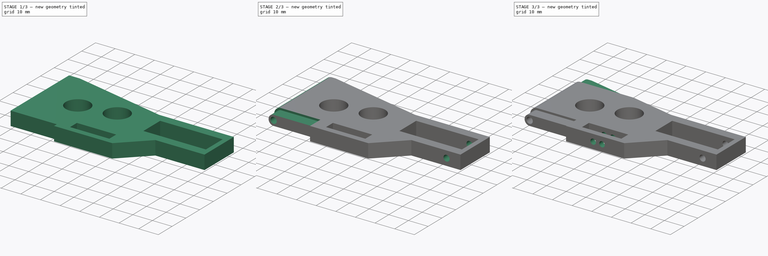
[diagram: build sequence overview — one tinted view per stage of 3, left to right]
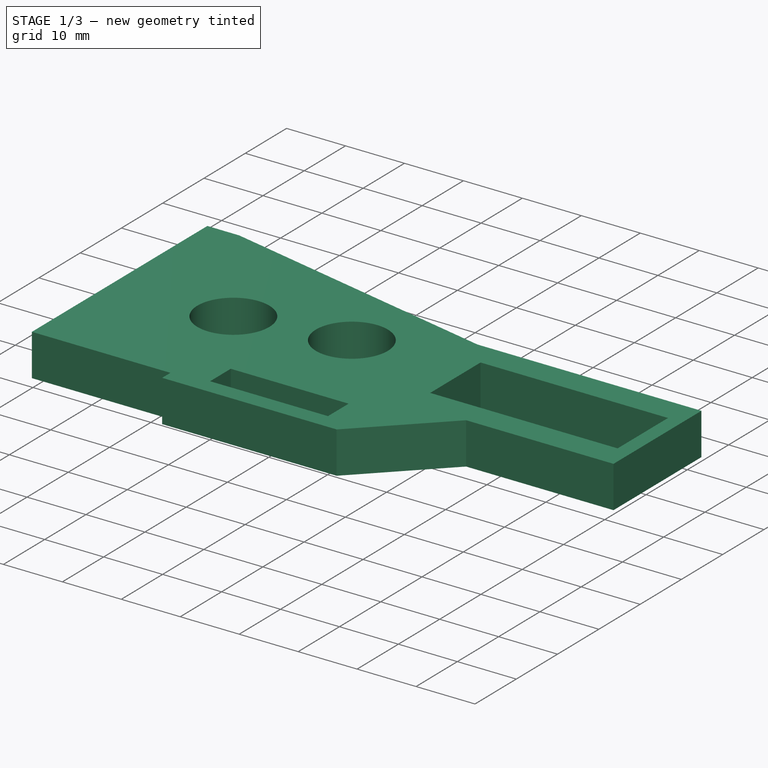
[diagram: stage 1 of 3 — iso view after this stage's code; geometry added in this stage tinted green]
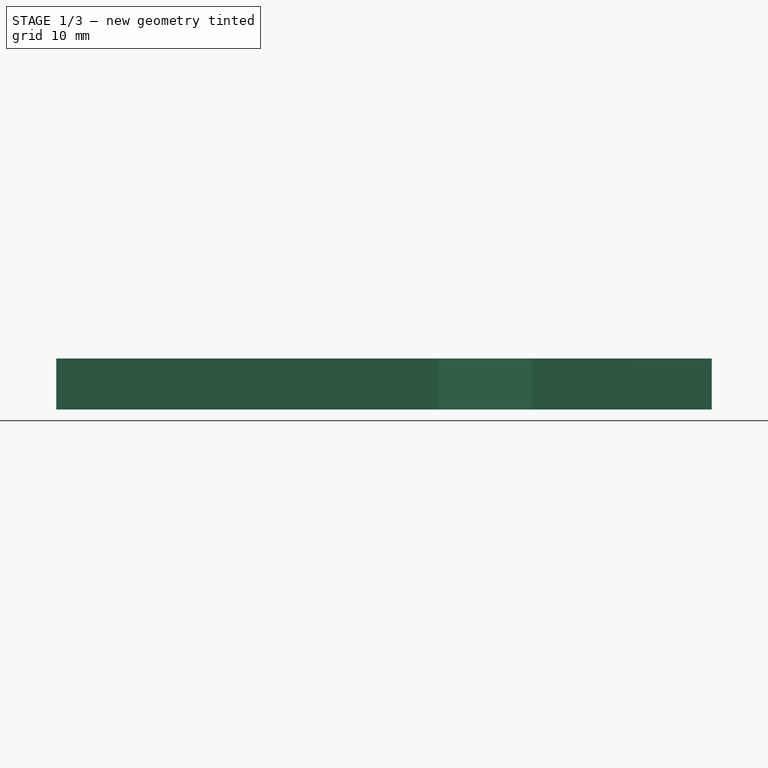
[diagram: stage 1 of 3 — front view after this stage's code; geometry added in this stage tinted green]
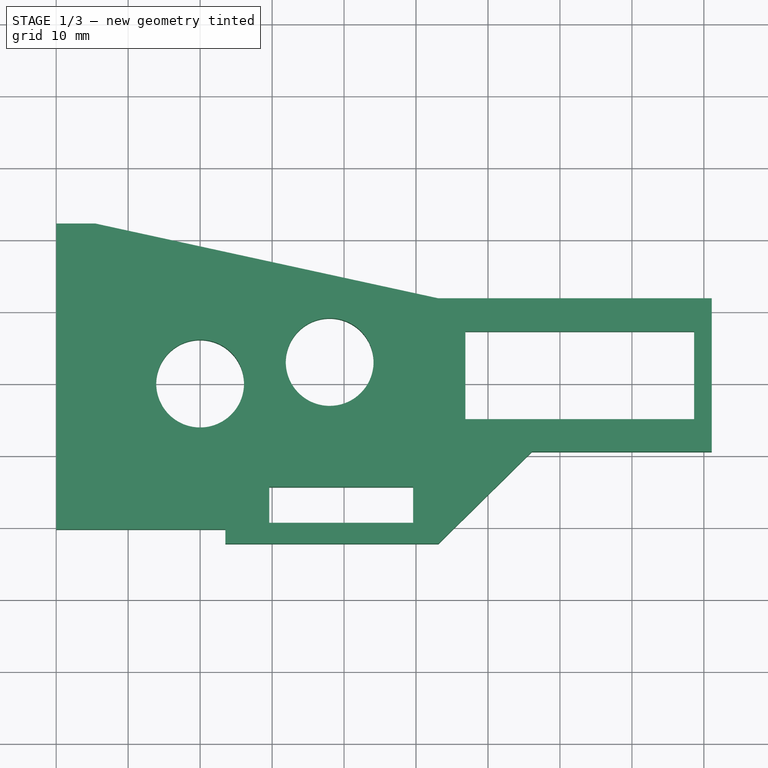
[diagram: stage 1 of 3 — top view after this stage's code; geometry added in this stage tinted green]
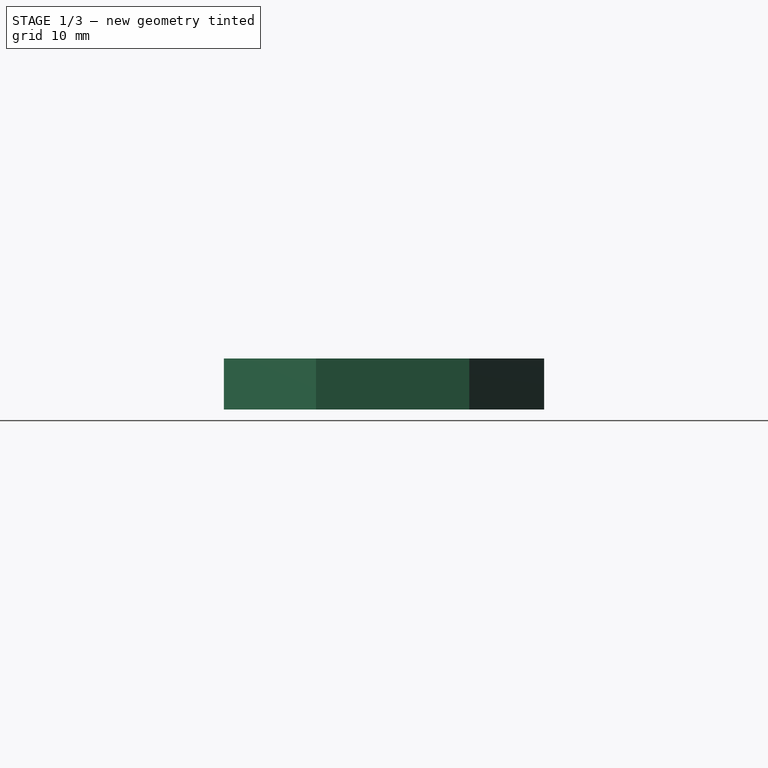
[diagram: stage 1 of 3 — right view after this stage's code; geometry added in this stage tinted green]
FCSTD DOCUMENT  (FreeCAD 0.15R4671 (Git))
Label: querlenker_v2
License: All rights reserved
LicenseURL: http://en.wikipedia.org/wiki/All_rights_reserved
objects: Sketcher::SketchObject×6, PartDesign::Pocket×5, PartDesign::Pad×1
note: 18 computed .brp shape members not serialized (recipe doc carries the construction recipe); baked Part::Feature solids carry a one-line shape summary decoded from their .brp

FEATURE [Sketcher::SketchObject] Sketch
  sketch-geometry (4):
    g0: LineSegment StartX=0 StartY=22.25 StartZ=0 EndX=91.1 EndY=22.25 EndZ=0
    g1: LineSegment StartX=91.1 StartY=22.25 StartZ=0 EndX=91.1 EndY=-22.25 EndZ=0
    g2: LineSegment StartX=91.1 StartY=-22.25 StartZ=0 EndX=0 EndY=-22.25 EndZ=0
    g3: LineSegment StartX=0 StartY=-22.25 StartZ=0 EndX=0 EndY=22.25 EndZ=0
  constraints (12):
    c: Coincident(g0,g1)
    c: Coincident(g1,g2)
    c: Coincident(g2,g3)
    c: Coincident(g3,g0)
    c: Horizontal(g0)
    c: Horizontal(g2)
    c: Vertical(g1)
    c: Vertical(g3)
    c: DistanceX(g0) = 91.1
    c: DistanceY(g3) = 44.5
    c: PointOnObject(g-1,g3)
    c: Symmetric(g3,g3,g-1)
FEATURE [PartDesign::Pad] Pad
  Length = 7.1
  Length2 = 100
  Midplane = true
  Sketch = -> Sketch
  Type = 0
FEATURE [Sketcher::SketchObject] Sketch001
  ExternalGeometry = -> [Pad]
  Placement = pos=(0,0,3.55) rot=(0,0,1;0rad)
  Support = -> Pad [Face6]
  sketch-geometry (22):
    g0: LineSegment StartX=91.1 StartY=22.25 StartZ=0 EndX=91.1 EndY=11.85 EndZ=0
    g1: LineSegment StartX=91.1 StartY=11.85 StartZ=0 EndX=53.1 EndY=11.85 EndZ=0
    g2: LineSegment StartX=53.1 StartY=11.85 StartZ=0 EndX=5.4 EndY=22.25 EndZ=0
    g3: LineSegment StartX=5.4 StartY=22.25 StartZ=0 EndX=91.1 EndY=22.25 EndZ=0
    g4: LineSegment StartX=91.1 StartY=-22.25 StartZ=0 EndX=91.1 EndY=-9.45 EndZ=0
    g5: LineSegment StartX=91.1 StartY=-9.45 StartZ=0 EndX=66.1 EndY=-9.45 EndZ=0
    g6: LineSegment StartX=66.1 StartY=-9.45 StartZ=0 EndX=53.1 EndY=-22.25 EndZ=0
    g7: LineSegment StartX=53.1 StartY=-22.25 StartZ=0 EndX=91.1 EndY=-22.25 EndZ=0
    g8: LineSegment StartX=56.85 StartY=7.25 StartZ=0 EndX=88.65 EndY=7.25 EndZ=0
    g9: LineSegment StartX=88.65 StartY=7.25 StartZ=0 EndX=88.65 EndY=-4.95 EndZ=0
    g10: LineSegment StartX=88.65 StartY=-4.95 StartZ=0 EndX=56.85 EndY=-4.95 EndZ=0
    g11: LineSegment StartX=56.85 StartY=-4.95 StartZ=0 EndX=56.85 EndY=7.25 EndZ=0
    g12: LineSegment StartX=0 StartY=-20.25 StartZ=0 EndX=23.5 EndY=-20.25 EndZ=0
    g13: LineSegment StartX=23.5 StartY=-20.25 StartZ=0 EndX=23.5 EndY=-22.25 EndZ=0
    g14: LineSegment StartX=23.5 StartY=-22.25 StartZ=0 EndX=0 EndY=-22.25 EndZ=0
    g15: LineSegment StartX=0 StartY=-22.25 StartZ=0 EndX=0 EndY=-20.25 EndZ=0
    g16: LineSegment StartX=29.6 StartY=-14.35 StartZ=0 EndX=49.6 EndY=-14.35 EndZ=0
    g17: LineSegment StartX=49.6 StartY=-14.35 StartZ=0 EndX=49.6 EndY=-19.35 EndZ=0
    g18: LineSegment StartX=49.6 StartY=-19.35 StartZ=0 EndX=29.6 EndY=-19.35 EndZ=0
    g19: LineSegment StartX=29.6 StartY=-19.35 StartZ=0 EndX=29.6 EndY=-14.35 EndZ=0
    g20: Circle CenterX=38 CenterY=3 CenterZ=0 NormalX=0 NormalY=0 NormalZ=1 Radius=6.1
    g21: Circle CenterX=20 CenterY=0 CenterZ=0 NormalX=0 NormalY=0 NormalZ=1 Radius=6.1
  constraints (65):
    c: Coincident(g0,g1)
    c: Coincident(g1,g2)
    c: Coincident(g2,g3)
    c: Coincident(g3,g0)
    c: Horizontal(g3)
    c: Vertical(g0)
    c: Horizontal(g1)
    c: Coincident(g0,g-3)
    c: DistanceX(g3) = 85.7
    c: DistanceY(g0) = -10.4
    c: DistanceX(g1) = -38
    c: Coincident(g4,g5)
    c: Coincident(g5,g6)
    c: Coincident(g6,g7)
    c: Coincident(g7,g4)
    c: Vertical(g4)
    c: Horizontal(g5)
    c: Horizontal(g7)
    c: DistanceY(g4) = 12.8
    c: DistanceX(g7) = 38
    c: DistanceX(g-3,g4) = 0
    c: DistanceY(g0,g4) = -21.3
    c: DistanceX(g5) = -25
    c: Coincident(g8,g9)
    c: Coincident(g9,g10)
    c: Coincident(g10,g11)
    c: Coincident(g11,g8)
    c: Horizontal(g8)
    c: Horizontal(g10)
    c: Vertical(g9)
    c: Vertical(g11)
    c: DistanceY(g9) = -12.2
    c: DistanceY(g8,g0) = 4.6
    c: DistanceX(g8,g0) = 2.45
    c: DistanceX(g8) = 31.8
    c: Coincident(g12,g13)
    c: Coincident(g13,g14)
    c: Coincident(g14,g15)
    c: Coincident(g15,g12)
    c: Horizontal(g12)
    c: Horizontal(g14)
    c: Vertical(g13)
    c: Vertical(g15)
    c: DistanceX(g14) = -23.5
    c: DistanceY(g15) = 2
    c: PointOnObject(g12,g-2)
    c: DistanceY(g-1,g12) = -20.25
    c: Coincident(g16,g17)
    c: Coincident(g17,g18)
    c: Coincident(g18,g19)
    c: Coincident(g19,g16)
    c: Horizontal(g16)
    c: Horizontal(g18)
    c: Vertical(g17)
    c: Vertical(g19)
    c: DistanceX(g16) = 20
    c: DistanceY(g19) = 5
    c: DistanceX(g-1,g16) = 29.6
    c: DistanceY(g18,g13) = -2.9
    c: Radius(g20) = 6.1
    c: Radius(g21) = 6.1
    c: PointOnObject(g21,g-1)
    c: DistanceY(g-1,g20) = 3
    c: DistanceX(g-1,g21) = 20
    c: DistanceX(g20,g21) = -18
FEATURE [PartDesign::Pocket] Pocket  label="Top"
  Length = 5
  Sketch = -> Sketch001
  Type = 1
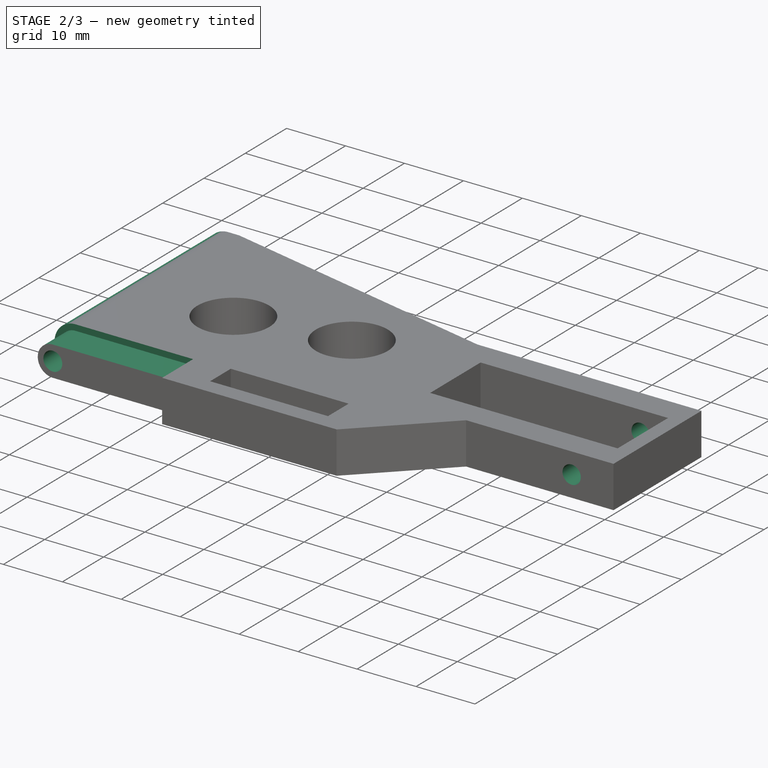
[diagram: stage 2 of 3 — iso view after this stage's code; geometry added in this stage tinted green]
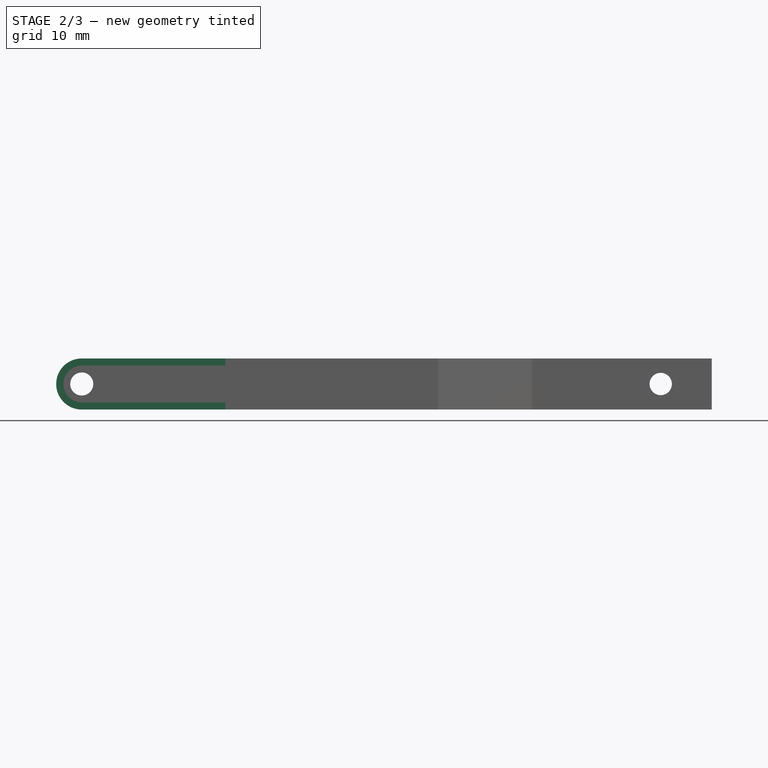
[diagram: stage 2 of 3 — front view after this stage's code; geometry added in this stage tinted green]
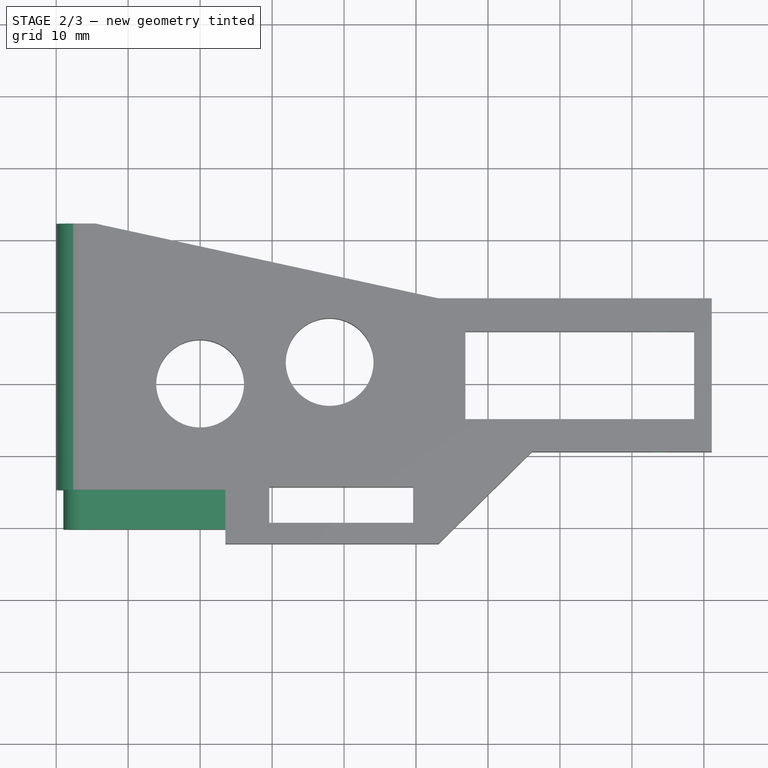
[diagram: stage 2 of 3 — top view after this stage's code; geometry added in this stage tinted green]
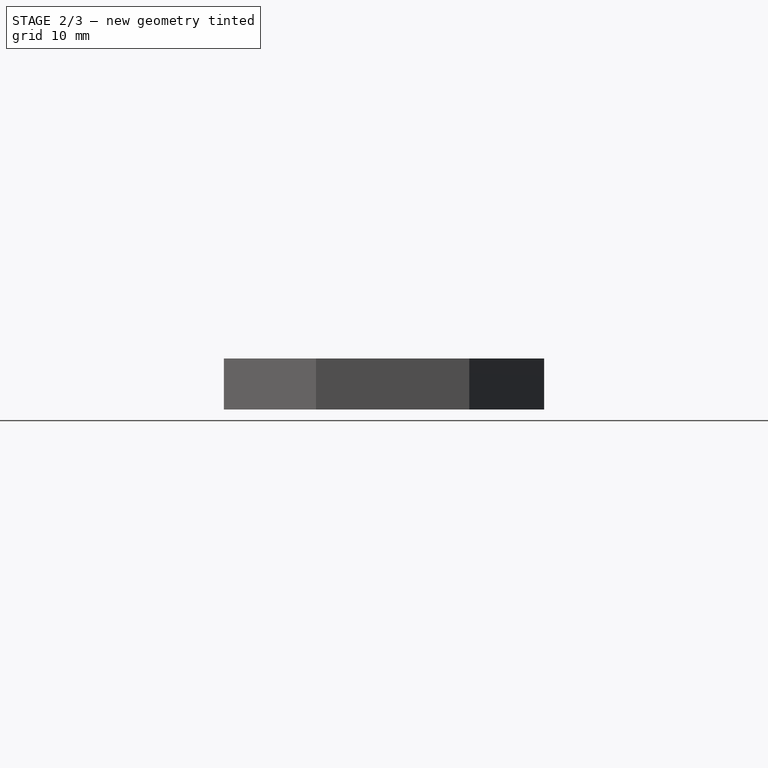
[diagram: stage 2 of 3 — right view after this stage's code; geometry added in this stage tinted green]
FEATURE [Sketcher::SketchObject] Sketch002
  Placement = pos=(0,-20.25,0) rot=(1,0,0;1.5708rad)
  Support = -> Pocket [Face12]
  sketch-geometry (6):
    g0: LineSegment StartX=-1.45001 StartY=3.55 StartZ=0 EndX=3.54999 EndY=3.55 EndZ=0
    g1: LineSegment StartX=3.54999 StartY=-3.55 StartZ=0 EndX=-1.45001 EndY=-3.55 EndZ=0
    g2: LineSegment StartX=-1.45001 StartY=-3.55 StartZ=0 EndX=-1.45001 EndY=3.55 EndZ=0
    g3: ArcOfCircle CenterX=3.55 CenterY=0 CenterZ=0 NormalX=0 NormalY=0 NormalZ=1 Radius=3.55 StartAngle=1.5708 EndAngle=4.71239
    g4: Circle CenterX=3.55 CenterY=0 CenterZ=0 NormalX=0 NormalY=0 NormalZ=1 Radius=1.6
    g5: Circle CenterX=84 CenterY=0 CenterZ=0 NormalX=0 NormalY=0 NormalZ=1 Radius=1.55
  constraints (18):
    c: Coincident(g1,g2)
    c: Coincident(g2,g0)
    c: Horizontal(g0)
    c: Horizontal(g1)
    c: Vertical(g2)
    c: DistanceX(g0) = 5
    c: Equal(g1,g0)
    c: DistanceY(g2) = 7.1
    c: Coincident(g0,g3)
    c: Coincident(g1,g3)
    c: Radius(g3) = 3.55
    c: PointOnObject(g3,g-1)
    c: PointOnObject(g-1,g3)
    c: Radius(g4) = 1.6
    c: Coincident(g4,g3)
    c: Radius(g5) = 1.55
    c: PointOnObject(g5,g-1)
    c: DistanceX(g-1,g5) = 84
FEATURE [PartDesign::Pocket] Pocket001  label="Rundung"
  Length = 5
  Sketch = -> Sketch002
  Type = 1
FEATURE [Sketcher::SketchObject] Sketch004
  Placement = pos=(0,-20.25,0) rot=(1,0,0;1.5708rad)
  Support = -> Pocket001 [Face14]
  sketch-geometry (8):
    g0: LineSegment StartX=0 StartY=3.55 StartZ=0 EndX=23.5 EndY=3.55 EndZ=0
    g1: LineSegment StartX=23.5 StartY=-3.55 StartZ=0 EndX=0 EndY=-3.55 EndZ=0
    g2: LineSegment StartX=0 StartY=-3.55 StartZ=0 EndX=0 EndY=3.55 EndZ=0
    g3: LineSegment StartX=3.55 StartY=-2.55 StartZ=0 EndX=23.5 EndY=-2.55 EndZ=0
    g4: LineSegment StartX=23.5 StartY=2.55 StartZ=0 EndX=3.55 EndY=2.55 EndZ=0
    g5: ArcOfCircle CenterX=3.55 CenterY=0 CenterZ=0 NormalX=0 NormalY=0 NormalZ=1 Radius=2.55 StartAngle=1.5708 EndAngle=4.71239
    g6: LineSegment StartX=23.5 StartY=3.55 StartZ=0 EndX=23.5 EndY=2.55 EndZ=0
    g7: LineSegment StartX=23.5 StartY=-2.55 StartZ=0 EndX=23.5 EndY=-3.55 EndZ=0
  constraints (26):
    c: Coincident(g1,g2)
    c: Coincident(g2,g0)
    c: Horizontal(g0)
    c: Horizontal(g1)
    c: Vertical(g2)
    c: Horizontal(g3)
    c: Horizontal(g4)
    c: Symmetric(g5,g5,g5)
    c: Coincident(g3,g5)
    c: Coincident(g4,g5)
    c: Vertical(g6)
    c: Vertical(g7)
    c: DistanceY(g2) = 7.1
    c: DistanceY(g4,g3) = -5.1
    c: Equal(g4,g3)
    c: Equal(g1,g0)
    c: Equal(g7,g6)
    c: DistanceY(g7) = -1
    c: Coincident(g7,g1)
    c: Coincident(g3,g7)
    c: Coincident(g6,g0)
    c: Coincident(g6,g4)
    c: PointOnObject(g-1,g2)
    c: PointOnObject(g5,g-1)
    c: DistanceX(g-1,g5) = 3.55
    c: DistanceX(g0) = 23.5
FEATURE [PartDesign::Pocket] Pocket002  label="Verkleinerung1"
  Length = 5.5
  Sketch = -> Sketch004
  Type = 0
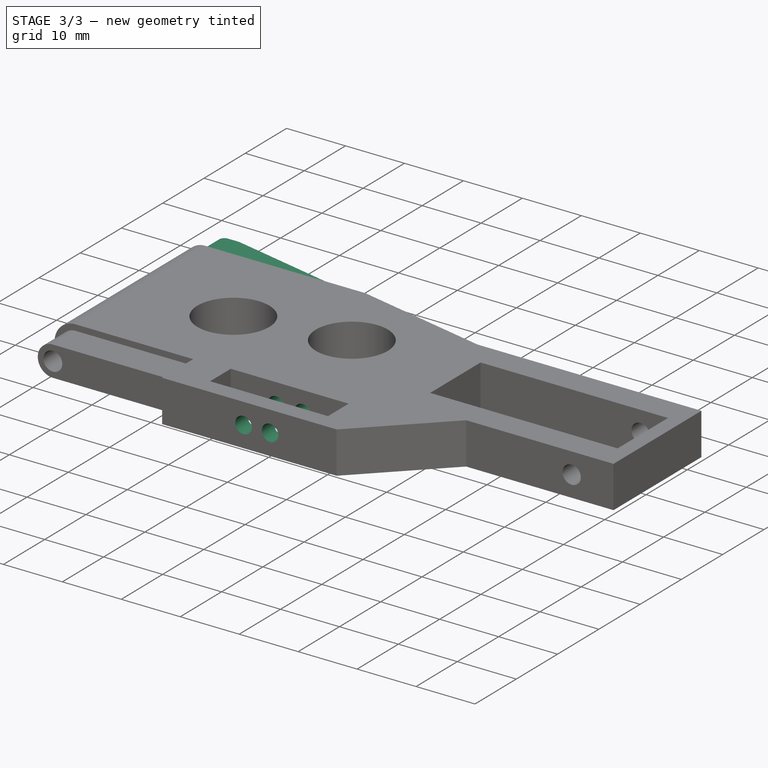
[diagram: stage 3 of 3 — iso view after this stage's code; geometry added in this stage tinted green]
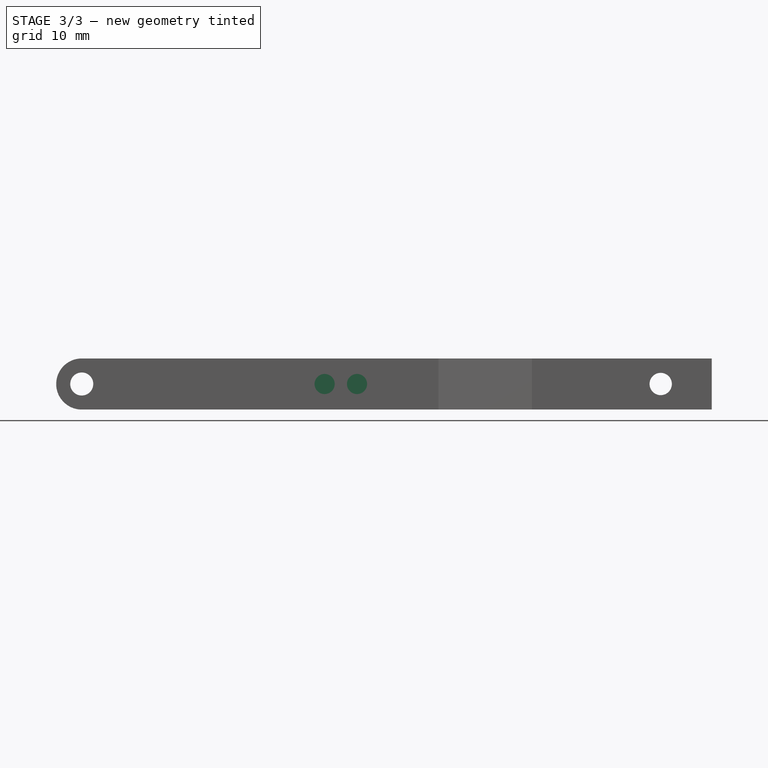
[diagram: stage 3 of 3 — front view after this stage's code; geometry added in this stage tinted green]
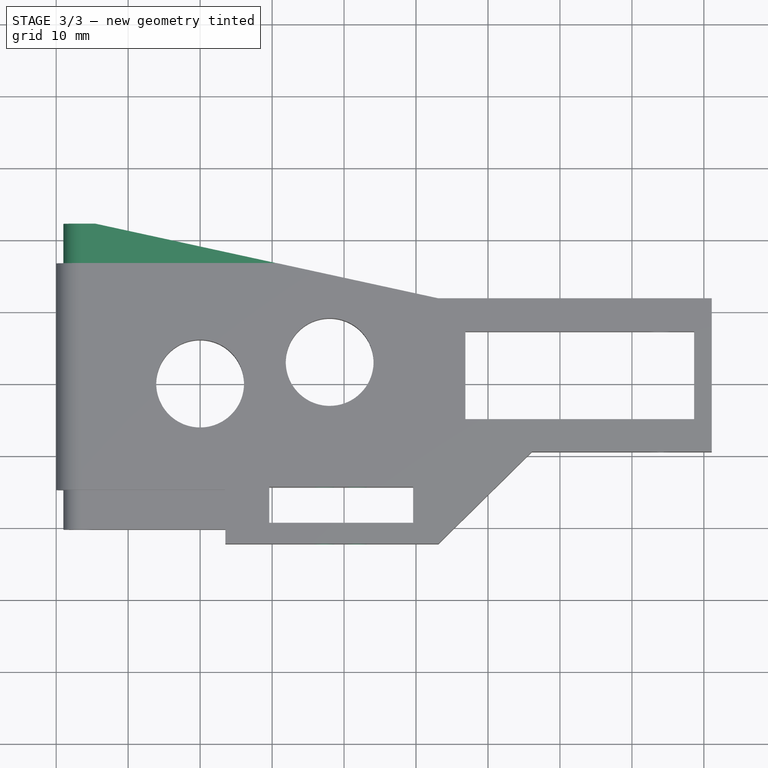
[diagram: stage 3 of 3 — top view after this stage's code; geometry added in this stage tinted green]
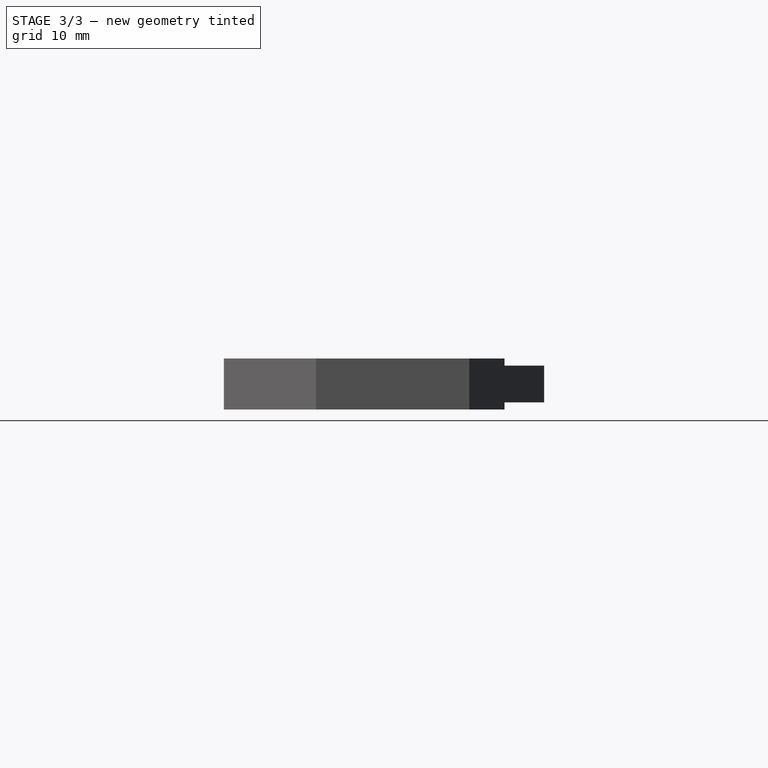
[diagram: stage 3 of 3 — right view after this stage's code; geometry added in this stage tinted green]
FEATURE [Sketcher::SketchObject] Sketch005
  ExternalGeometry = -> [Pocket002]
  Placement = pos=(0,22.25,0) rot=(0,0.707107,0.707107;3.14159rad)
  Support = -> Pocket002 [Face1]
  sketch-geometry (8):
    g0: LineSegment StartX=-53.1 StartY=3.55 StartZ=0 EndX=0 EndY=3.55 EndZ=0
    g1: LineSegment StartX=0 StartY=3.55 StartZ=0 EndX=0 EndY=-3.55 EndZ=0
    g2: LineSegment StartX=0 StartY=-3.55 StartZ=0 EndX=-53.1 EndY=-3.55 EndZ=0
    g3: LineSegment StartX=-53.1 StartY=2.55 StartZ=0 EndX=-3.55 EndY=2.55 EndZ=0
    g4: LineSegment StartX=-3.55 StartY=-2.55 StartZ=0 EndX=-53.1 EndY=-2.55 EndZ=0
    g5: ArcOfCircle CenterX=-3.55 CenterY=0 CenterZ=0 NormalX=0 NormalY=0 NormalZ=1 Radius=2.55 StartAngle=4.71239 EndAngle=7.85398
    g6: LineSegment StartX=-53.1 StartY=3.55 StartZ=0 EndX=-53.1 EndY=2.55 EndZ=0
    g7: LineSegment StartX=-53.1 StartY=-2.55 StartZ=0 EndX=-53.1 EndY=-3.55 EndZ=0
FEATURE [PartDesign::Pocket] Pocket003  label="Verkleinerung2"
  Length = 5.5
  Sketch = -> Sketch005
  Type = 0
FEATURE [Sketcher::SketchObject] Sketch006
  Placement = pos=(0,-22.25,0) rot=(1,0,0;1.5708rad)
  Support = -> Pocket003 [Face15]
  sketch-geometry (2):
    g0: Circle CenterX=37.3 CenterY=0 CenterZ=0 NormalX=0 NormalY=0 NormalZ=1 Radius=1.4
    g1: Circle CenterX=41.8 CenterY=0 CenterZ=0 NormalX=0 NormalY=0 NormalZ=1 Radius=1.4
  constraints (6):
    c: Radius(g0) = 1.4
    c: PointOnObject(g0,g-1)
    c: DistanceX(g-1,g0) = 37.3
    c: Radius(g1) = 1.4
    c: PointOnObject(g1,g-1)
    c: DistanceX(g1,g0) = -4.5
FEATURE [PartDesign::Pocket] Pocket004  label="Schraubenlöcher"
  Length = 15
  Sketch = -> Sketch006
  Type = 0
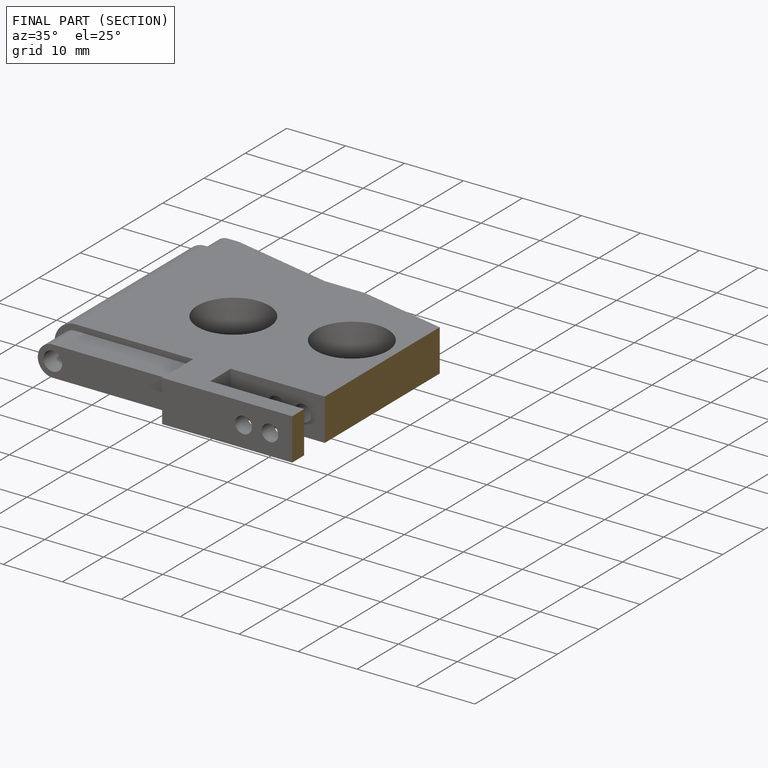
[diagram: finished part — half-section view (interior)]
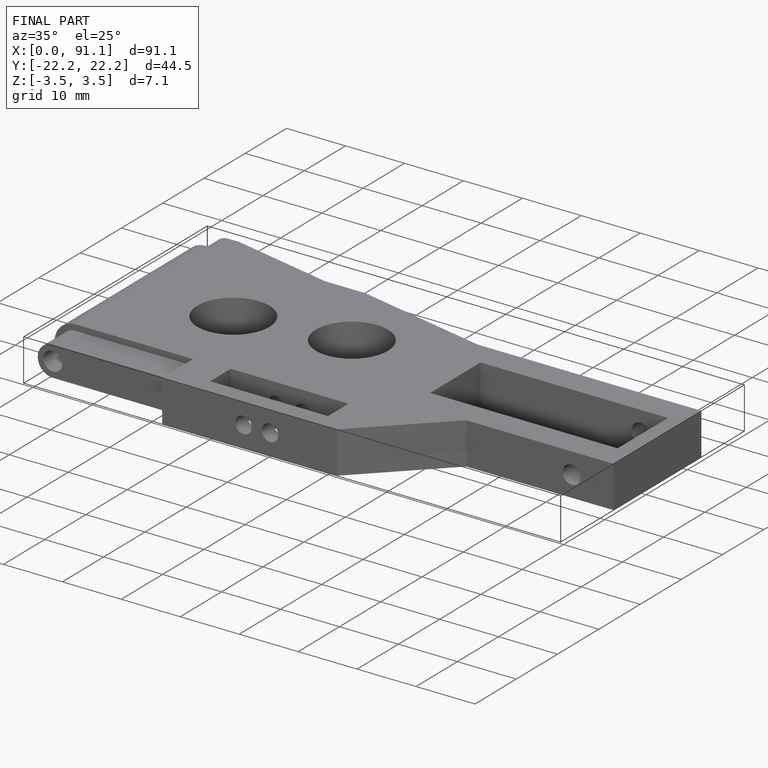
[diagram: finished part — iso view with bounding-box wireframe]
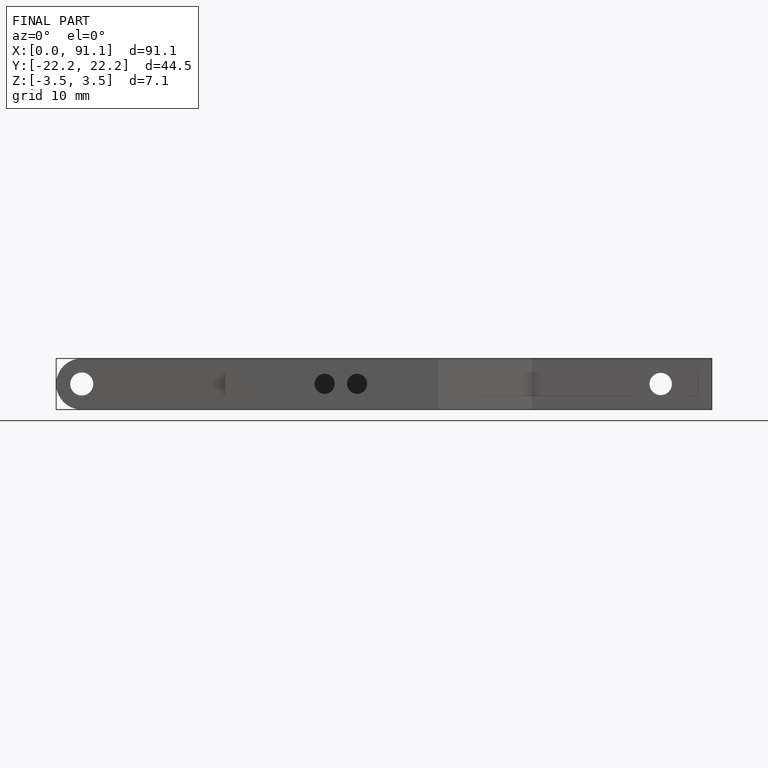
[diagram: finished part — front view with bounding-box wireframe]
